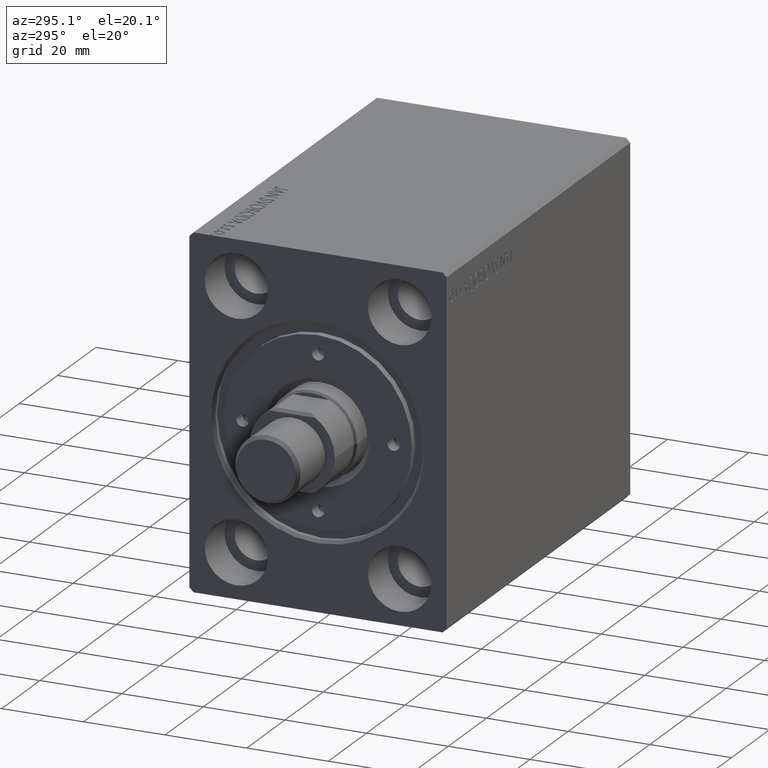
[diagram: clean part render]
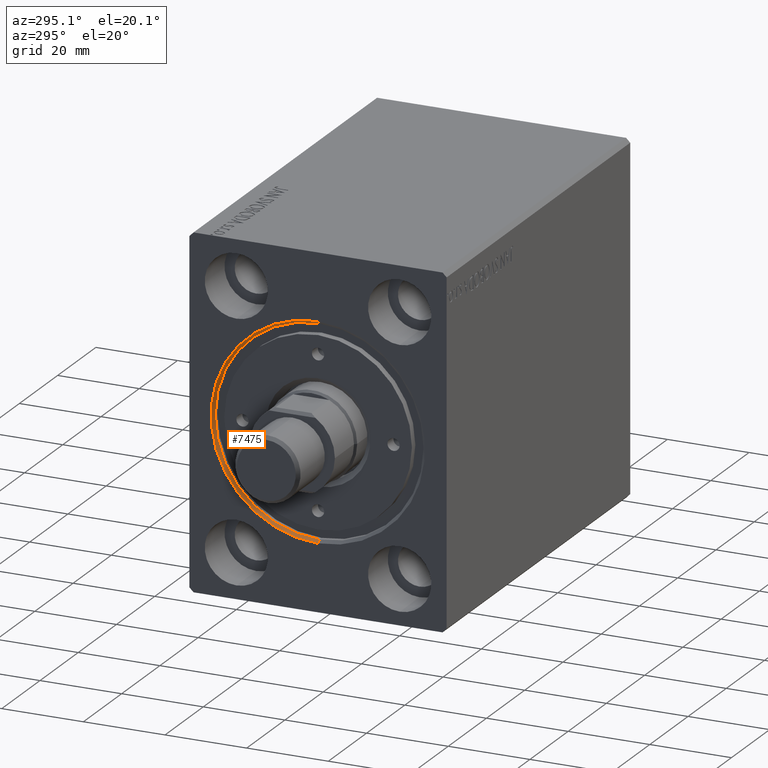
[diagram: same view with one face highlighted and labeled with its STEP entity id]
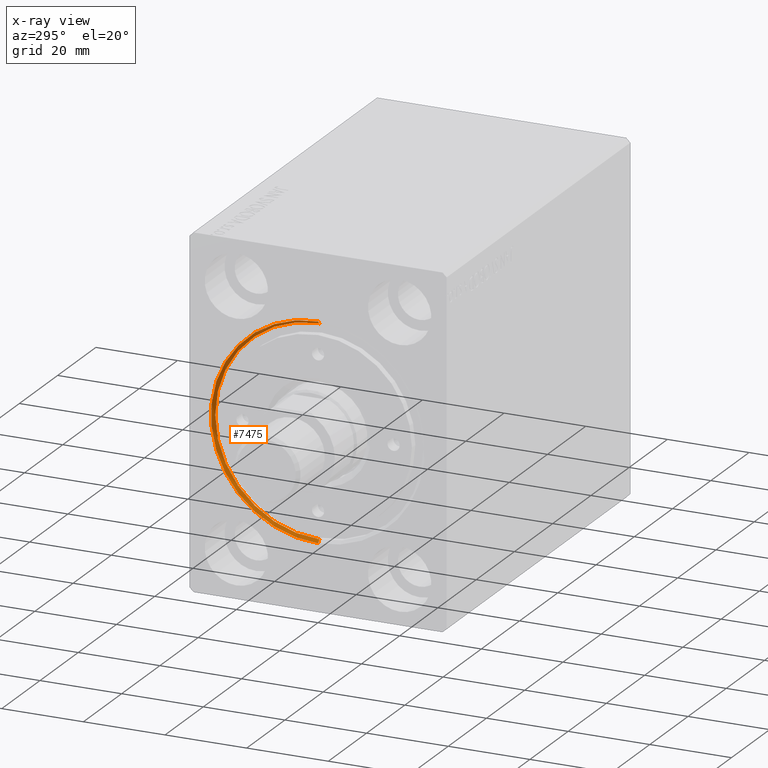
[diagram: x-ray of the same camera — body ghosted, the highlighted face saturated]
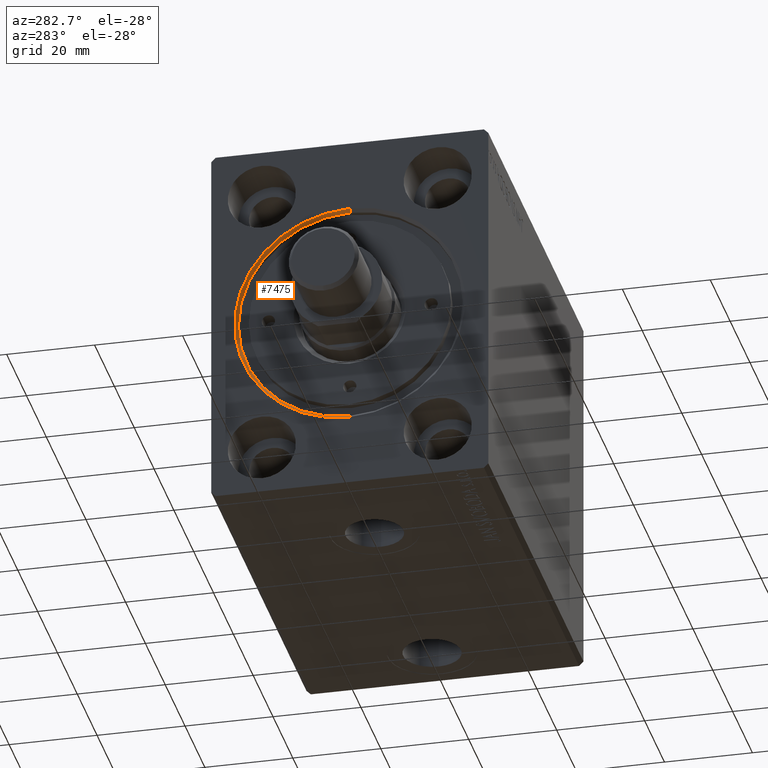
[diagram: same view with one face highlighted and labeled with its STEP entity id]
A machine part, auxiliary view. The second image highlights one B-rep face of the part: STEP entity #7475.
The next image is the same camera in x-ray: the body ghosted, the highlighted face saturated — about 0% of this face is hidden behind the body in this view.
A second angle (auxiliary view) of the same face is appended — the face is thin or edge-on in the first view.
In plain terms, the highlighted conical surface has half-angle 45 deg.
Its self-contained STEP definition (entity closure, byte-faithful):
#1162 = CARTESIAN_POINT ( 'NONE',  ( 0.000000000000000000, 0.000000000000000000, 26.19999999999998863 ) ) ;
#1440 = LINE ( 'NONE', #25500, #8493 ) ;
#2050 = EDGE_CURVE ( 'NONE', #17214, #29020, #13513, .T. ) ;
#2374 = DIRECTION ( 'NONE',  ( -0.7071067811865422437, 0.000000000000000000, 0.7071067811865527908 ) ) ;
#3200 = ORIENTED_EDGE ( 'NONE', *, *, #2050, .F. ) ;
#5969 = EDGE_CURVE ( 'NONE', #15208, #29020, #40392, .T. ) ;
#6319 = EDGE_CURVE ( 'NONE', #33389, #17214, #1440, .T. ) ;
#7475 = ADVANCED_FACE ( 'NONE', ( #9911 ), #15715, .F. ) ;
#8493 = VECTOR ( 'NONE', #28454, 1000.000000000000000 ) ;
#9911 = FACE_OUTER_BOUND ( 'NONE', #23468, .T. ) ;
#10549 = ORIENTED_EDGE ( 'NONE', *, *, #5969, .T. ) ;
#10957 = DIRECTION ( 'NONE',  ( 0.000000000000000000, 0.000000000000000000, -1.000000000000000000 ) ) ;
#12041 = CARTESIAN_POINT ( 'NONE',  ( 0.000000000000000000, 0.000000000000000000, 0.000000000000000000 ) ) ;
#13513 = CIRCLE ( 'NONE', #38677, 26.19999999999998863 ) ;
#15208 = VERTEX_POINT ( 'NONE', #36525 ) ;
#15715 = CONICAL_SURFACE ( 'NONE', #20030, 25.50000000000000000, 0.7853981633974557175 ) ;
#16653 = DIRECTION ( 'NONE',  ( 0.000000000000000000, 0.000000000000000000, 1.000000000000000000 ) ) ;
#17214 = VERTEX_POINT ( 'NONE', #41089 ) ;
#17258 = DIRECTION ( 'NONE',  ( -1.000000000000000000, 0.000000000000000000, 0.000000000000000000 ) ) ;
#20030 = AXIS2_PLACEMENT_3D ( 'NONE', #37596, #33778, #16653 ) ;
#22388 = DIRECTION ( 'NONE',  ( 0.000000000000000000, 0.000000000000000000, -1.000000000000000000 ) ) ;
#23468 = EDGE_LOOP ( 'NONE', ( #44232, #38961, #10549, #3200 ) ) ;
#24232 = CIRCLE ( 'NONE', #35745, 25.50000000000000000 ) ;
#25500 = CARTESIAN_POINT ( 'NONE',  ( 0.6999999999999784173, 3.122849337825750222E-15, -25.50000000000000000 ) ) ;
#26213 = CARTESIAN_POINT ( 'NONE',  ( 0.6999999999999784173, 0.000000000000000000, 25.50000000000000000 ) ) ;
#27839 = CARTESIAN_POINT ( 'NONE',  ( 0.6999999999999784173, 0.000000000000000000, 0.000000000000000000 ) ) ;
#28454 = DIRECTION ( 'NONE',  ( -0.7071067811865422437, 8.659560562354996953E-17, -0.7071067811865527908 ) ) ;
#29020 = VERTEX_POINT ( 'NONE', #1162 ) ;
#30561 = CARTESIAN_POINT ( 'NONE',  ( 0.6999999999999784173, 3.122849337825750222E-15, -25.50000000000000000 ) ) ;
#33389 = VERTEX_POINT ( 'NONE', #30561 ) ;
#33778 = DIRECTION ( 'NONE',  ( -1.000000000000000000, 0.000000000000000000, 0.000000000000000000 ) ) ;
#35745 = AXIS2_PLACEMENT_3D ( 'NONE', #27839, #17258, #10957 ) ;
#36525 = CARTESIAN_POINT ( 'NONE',  ( 0.6999999999999784173, 0.000000000000000000, 25.50000000000000000 ) ) ;
#37596 = CARTESIAN_POINT ( 'NONE',  ( 0.6999999999999784173, 0.000000000000000000, 0.000000000000000000 ) ) ;
#37973 = VECTOR ( 'NONE', #2374, 1000.000000000000000 ) ;
#38677 = AXIS2_PLACEMENT_3D ( 'NONE', #12041, #42431, #22388 ) ;
#38961 = ORIENTED_EDGE ( 'NONE', *, *, #44167, .F. ) ;
#40392 = LINE ( 'NONE', #26213, #37973 ) ;
#41089 = CARTESIAN_POINT ( 'NONE',  ( 0.000000000000000000, 3.208574613766063722E-15, -26.19999999999998863 ) ) ;
#42431 = DIRECTION ( 'NONE',  ( 1.000000000000000000, 0.000000000000000000, 0.000000000000000000 ) ) ;
#44167 = EDGE_CURVE ( 'NONE', #15208, #33389, #24232, .T. ) ;
#44232 = ORIENTED_EDGE ( 'NONE', *, *, #6319, .F. ) ;